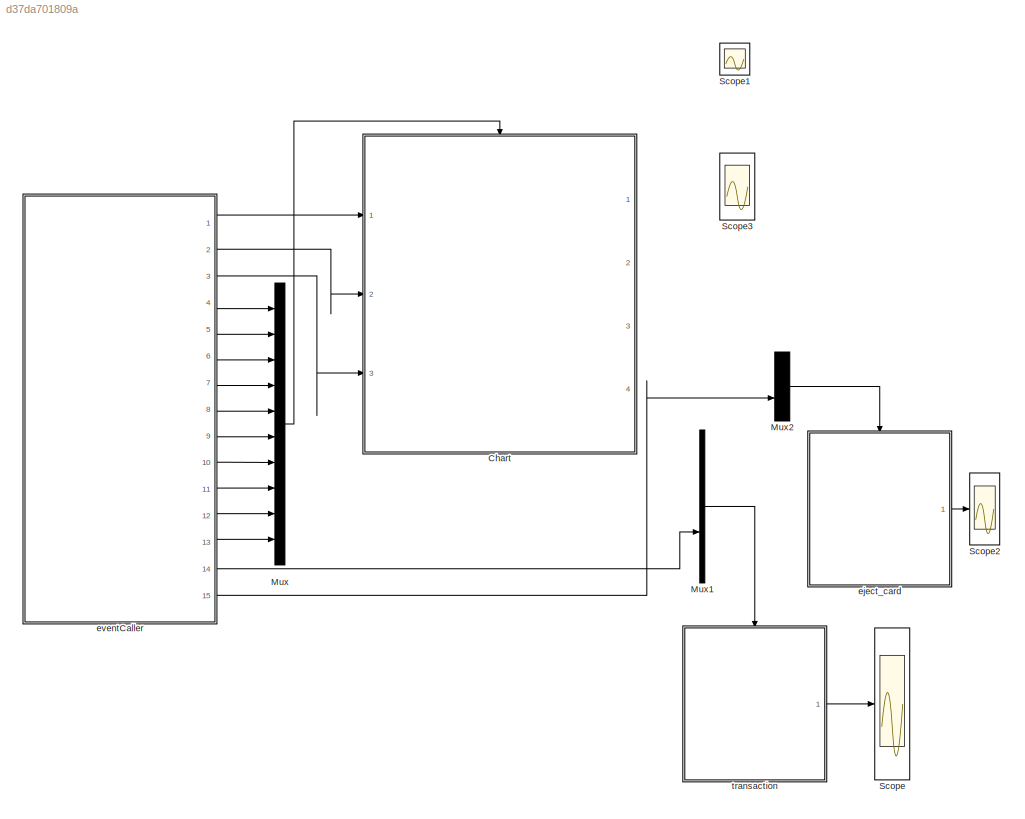
MODEL slx_d37da701809a
KIND model
CONFIG AbsTol = auto
CONFIG EnableMultiTasking = on
CONFIG FixedStep = 0.1
CONFIG MaxStep = auto
CONFIG MinStep = auto
CONFIG RelTol = 1e-3
CONFIG SampleTimeConstraint = Unconstrained
CONFIG Solver = FixedStepDiscrete
CONFIG SolverName = FixedStepDiscrete
CONFIG StartTime = 0.0
CONFIG StopTime = 15
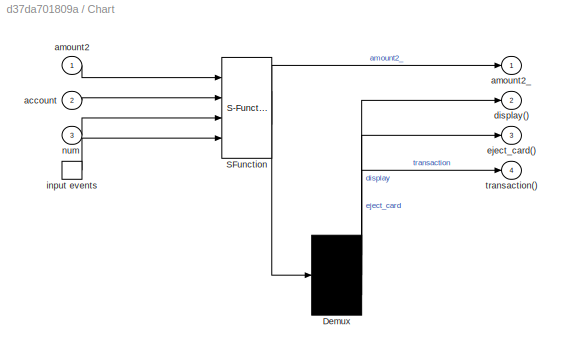
BLOCK [SubSystem] Chart
  ErrorFcn = Stateflow.Translate.translate
  PermitHierarchicalResolution = ExplicitOnly
  Ports = [3, 4, 0, 1]
  RequestExecContextInheritance = off
  SFBlockType = Chart
  TreatAsAtomicUnit = on
  Variant = off
BLOCK [Demux] Chart/ Demux 
  Outputs = 3
  Ports = [1, 3]
BLOCK [S-Function] Chart/ SFunction 
  EnableBusSupport = on
  FunctionName = sf_sfun
  PortCounts = [4 2]
  Ports = [4, 2]
  SFcnIsStateOwnerBlock = off
  SFunctionDeploymentMode = off
  Tag = Stateflow S-Function atm 3
BLOCK [Inport] Chart/account
  IconDisplay = Port number
  Port = 2
BLOCK [Inport] Chart/amount2
  IconDisplay = Port number
BLOCK [Outport] Chart/amount2_
  IconDisplay = Port number
BLOCK [Outport] Chart/display()
  IconDisplay = Port number
  Port = 2
BLOCK [Outport] Chart/eject_card()
  IconDisplay = Port number
  Port = 3
BLOCK [TriggerPort] Chart/input events
  Ports = [0, 1]
  ShowOutputPort = on
  StatesWhenEnabling = held
  TriggerType = function-call
  VariantControl = Variant
BLOCK [Inport] Chart/num
  IconDisplay = Port number
  Port = 3
BLOCK [Outport] Chart/transaction()
  IconDisplay = Port number
  Port = 4
BLOCK [Mux] Mux
  DisplayOption = bar
  Inputs = 10
  Ports = [10, 1]
BLOCK [Mux] Mux1
  DisplayOption = bar
  Inputs = 2
  Ports = [2, 1]
BLOCK [Mux] Mux2
  DisplayOption = bar
  Inputs = 2
  Ports = [2, 1]
BLOCK [Scope] Scope
  NumInputPorts = 1
  Ports = [1]
  ScopeSpecificationString = Simulink.scopes.TimeScopeBlockCfg('CurrentConfiguration', extmgr.ConfigurationSet(extmgr.Configuration('Core','General UI',true),extmgr.Configuration('Core','Source UI',true),extmgr.Configuration('Sources','WiredSimulink',true),extmgr.Configuration('Visuals','Time Domain',true,'SerializedDisplays',{struct('MinYLimReal','-1.1','MaxYLimReal','-0.9','YLabelReal','','MinYLimMag','0.00000','MaxYLimMag'...<+1380ch>
BLOCK [Scope] Scope1
  NumInputPorts = 1
  Ports = [1]
  ScopeSpecificationString = Simulink.scopes.TimeScopeBlockCfg('CurrentConfiguration', extmgr.ConfigurationSet(extmgr.Configuration('Core','General UI',true),extmgr.Configuration('Core','Source UI',true),extmgr.Configuration('Sources','WiredSimulink',true,'DataLoggingVariableName','ScopeData1'),extmgr.Configuration('Visuals','Time Domain',true,'SerializedDisplays',{struct('MinYLimReal','-105.95674','MaxYLimReal','5500.00000',...<+1510ch>
BLOCK [Scope] Scope2
  NumInputPorts = 1
  Ports = [1]
  ScopeSpecificationString = Simulink.scopes.TimeScopeBlockCfg('CurrentConfiguration', extmgr.ConfigurationSet(extmgr.Configuration('Core','General UI',true),extmgr.Configuration('Core','Source UI',true),extmgr.Configuration('Sources','WiredSimulink',true,'DataLoggingVariableName','ScopeData2'),extmgr.Configuration('Visuals','Time Domain',true,'SerializedDisplays',{struct('MinYLimReal','-1.1','MaxYLimReal','-0.9','YLabelReal'...<+1419ch>
BLOCK [Scope] Scope3
  NumInputPorts = 2
  Ports = [2]
  ScopeSpecificationString = Simulink.scopes.TimeScopeBlockCfg('CurrentConfiguration', extmgr.ConfigurationSet(extmgr.Configuration('Core','General UI',true),extmgr.Configuration('Core','Source UI',true),extmgr.Configuration('Sources','WiredSimulink',true,'DataLoggingVariableName','ScopeData3'),extmgr.Configuration('Visuals','Time Domain',true,'SerializedDisplays',{struct('MinYLimReal','-3.875','MaxYLimReal','24.875','YLabelR...<+1449ch>
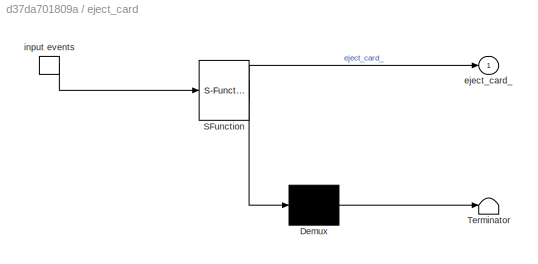
BLOCK [SubSystem] eject_card
  ErrorFcn = Stateflow.Translate.translate
  PermitHierarchicalResolution = ExplicitOnly
  Ports = [0, 1, 0, 1]
  RequestExecContextInheritance = off
  SFBlockType = Chart
  TreatAsAtomicUnit = on
  Variant = off
BLOCK [Demux] eject_card/ Demux 
  Outputs = 1
  Ports = [1, 1]
BLOCK [S-Function] eject_card/ SFunction 
  EnableBusSupport = on
  FunctionName = sf_sfun
  PortCounts = [1 2]
  Ports = [1, 2]
  SFcnIsStateOwnerBlock = off
  SFunctionDeploymentMode = off
  Tag = Stateflow S-Function atm 4
BLOCK [Terminator] eject_card/ Terminator 
BLOCK [Outport] eject_card/eject_card_
  IconDisplay = Port number
BLOCK [TriggerPort] eject_card/input events
  Ports = [0, 1]
  ShowOutputPort = on
  StatesWhenEnabling = held
  TriggerType = function-call
  VariantControl = Variant
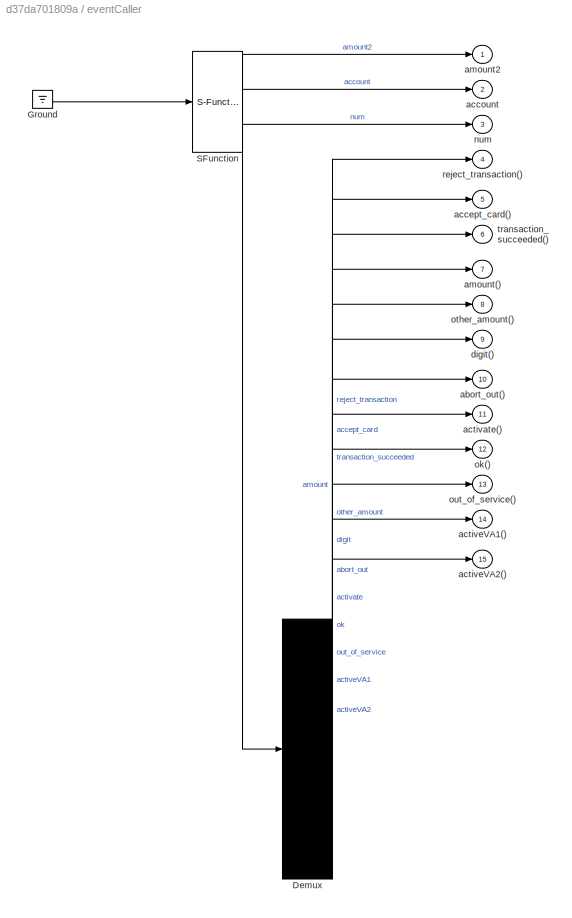
BLOCK [SubSystem] eventCaller
  ErrorFcn = Stateflow.Translate.translate
  PermitHierarchicalResolution = ExplicitOnly
  Ports = [0, 15]
  RequestExecContextInheritance = off
  SFBlockType = Chart
  TreatAsAtomicUnit = on
  Variant = off
BLOCK [Demux] eventCaller/ Demux 
  Outputs = 12
  Ports = [1, 12]
BLOCK [Ground] eventCaller/ Ground 
BLOCK [S-Function] eventCaller/ SFunction 
  EnableBusSupport = on
  FunctionName = sf_sfun
  PortCounts = [1 4]
  Ports = [1, 4]
  SFcnIsStateOwnerBlock = off
  SFunctionDeploymentMode = off
  Tag = Stateflow S-Function atm 1
BLOCK [Outport] eventCaller/abort_out()
  IconDisplay = Port number
  Port = 10
BLOCK [Outport] eventCaller/accept_card()
  IconDisplay = Port number
  Port = 5
BLOCK [Outport] eventCaller/account
  IconDisplay = Port number
  Port = 2
BLOCK [Outport] eventCaller/activate()
  IconDisplay = Port number
  Port = 11
BLOCK [Outport] eventCaller/activeVA1()
  IconDisplay = Port number
  Port = 14
BLOCK [Outport] eventCaller/activeVA2()
  IconDisplay = Port number
  Port = 15
BLOCK [Outport] eventCaller/amount()
  IconDisplay = Port number
  Port = 7
BLOCK [Outport] eventCaller/amount2
  IconDisplay = Port number
BLOCK [Outport] eventCaller/digit()
  IconDisplay = Port number
  Port = 9
BLOCK [Outport] eventCaller/num
  IconDisplay = Port number
  Port = 3
BLOCK [Outport] eventCaller/ok()
  IconDisplay = Port number
  Port = 12
BLOCK [Outport] eventCaller/other_amount()
  IconDisplay = Port number
  Port = 8
BLOCK [Outport] eventCaller/out_of_service()
  IconDisplay = Port number
  Port = 13
BLOCK [Outport] eventCaller/reject_transaction()
  IconDisplay = Port number
  Port = 4
BLOCK [Outport] eventCaller/transaction_succeeded()
  IconDisplay = Port number
  Port = 6
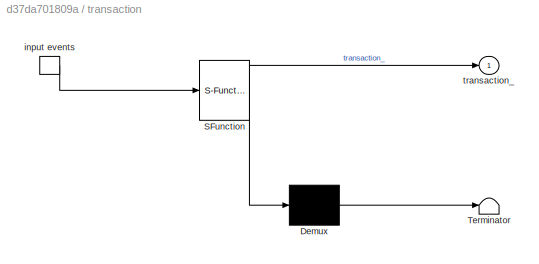
BLOCK [SubSystem] transaction
  ErrorFcn = Stateflow.Translate.translate
  PermitHierarchicalResolution = ExplicitOnly
  Ports = [0, 1, 0, 1]
  RequestExecContextInheritance = off
  SFBlockType = Chart
  TreatAsAtomicUnit = on
  Variant = off
BLOCK [Demux] transaction/ Demux 
  Outputs = 1
  Ports = [1, 1]
BLOCK [S-Function] transaction/ SFunction 
  EnableBusSupport = on
  FunctionName = sf_sfun
  PortCounts = [1 2]
  Ports = [1, 2]
  SFcnIsStateOwnerBlock = off
  SFunctionDeploymentMode = off
  Tag = Stateflow S-Function atm 2
BLOCK [Terminator] transaction/ Terminator 
BLOCK [TriggerPort] transaction/input events
  Ports = [0, 1]
  ShowOutputPort = on
  StatesWhenEnabling = held
  TriggerType = function-call
  VariantControl = Variant
BLOCK [Outport] transaction/transaction_
  IconDisplay = Port number
LINE Mux1:1 -> transaction:trigger
LINE Mux2:1 -> eject_card:trigger
LINE Mux:1 -> Chart:trigger
LINE eject_card:1 -> Scope2:1
LINE eventCaller:1 -> Chart:1
LINE eventCaller:10 -> Mux:7
LINE eventCaller:11 -> Mux:8
LINE eventCaller:12 -> Mux:9
LINE eventCaller:13 -> Mux:10
LINE eventCaller:14 -> Mux1:2
LINE eventCaller:15 -> Mux2:2
LINE eventCaller:2 -> Chart:2
LINE eventCaller:3 -> Chart:3
LINE eventCaller:4 -> Mux:1
LINE eventCaller:5 -> Mux:2
LINE eventCaller:6 -> Mux:3
LINE eventCaller:7 -> Mux:4
LINE eventCaller:8 -> Mux:5
LINE eventCaller:9 -> Mux:6
LINE transaction:1 -> Scope:1
CHART eventCaller states=12 transitions=12
  STATE_LABEL 'S1'
  STATE_LABEL 'S2'
  STATE_LABEL 'S3'
  STATE_LABEL 'S5'
  STATE_LABEL 'S4'
  STATE_LABEL 'S6'
  STATE_LABEL 'S10'
  STATE_LABEL 'S9'
  STATE_LABEL 'S8'
  STATE_LABEL 'S14'
  STATE_LABEL 'S7'
  STATE_LABEL 'S11'
CHART transaction states=2 transitions=3
  STATE_LABEL 'A\nentry: transaction_=-1'
  STATE_LABEL 'B\nentry: transaction_=1'
CHART Chart states=7 transitions=12
  STATE_LABEL "VERIFYING_CARD\nentry: fprintf('VERIFYING_CARD')"
  STATE_LABEL "READ_AMOUNT\nentry: fprintf('READ_AMOUNT')"
  STATE_LABEL "AMOUNT_SELECTION\nentry: fprintf('AMOUNT_SELECTION')"
  STATE_LABEL "ENTER_AMOUNT\nentry: fprintf('ENTER_AMOUNT')\n"
  STATE_LABEL "{display_=1; display, \nfprintf('<- display - Select amount')}"
  STATE_LABEL "other_amount\n{amount2_=0;\nfprintf('other_amount ->')}"
  STATE_LABEL "digit{num_=num; \nfprintf('digit - %d ->', num),\namount2_=amount2_*10+num_;}"
  STATE_LABEL "AMOUNT_SELECTION\nentry: fprintf('AMOUNT_SELECTION')"
  STATE_LABEL "ENTER_AMOUNT\nentry: fprintf('ENTER_AMOUNT')\n"
  STATE_LABEL "VERIFYING_TRANSACTION\nentry: fprintf('VERIFYING_TRANSACTION')"
  STATE_LABEL "CARD_RELEASED\nentry: fprintf('CARD_RELEASED')"
  STATE_LABEL "OUT_OF_SERVICE\nentry: fprintf('OUT_OF_SERVICE')"
CHART eject_card states=2 transitions=3
  STATE_LABEL 'A\nentry: eject_card_=-1'
  STATE_LABEL 'B\nentry: eject_card_=1'
